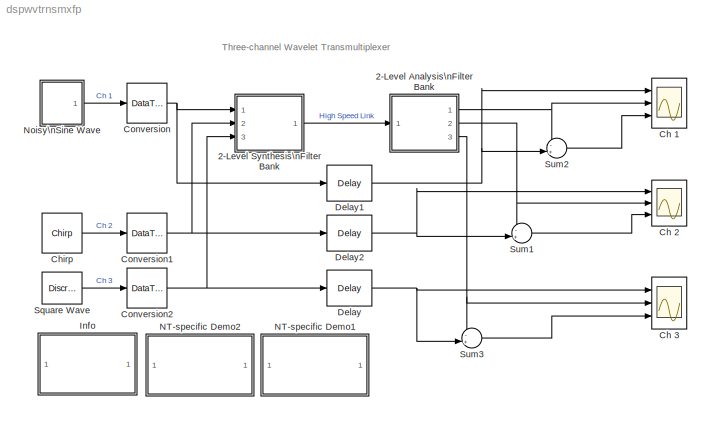
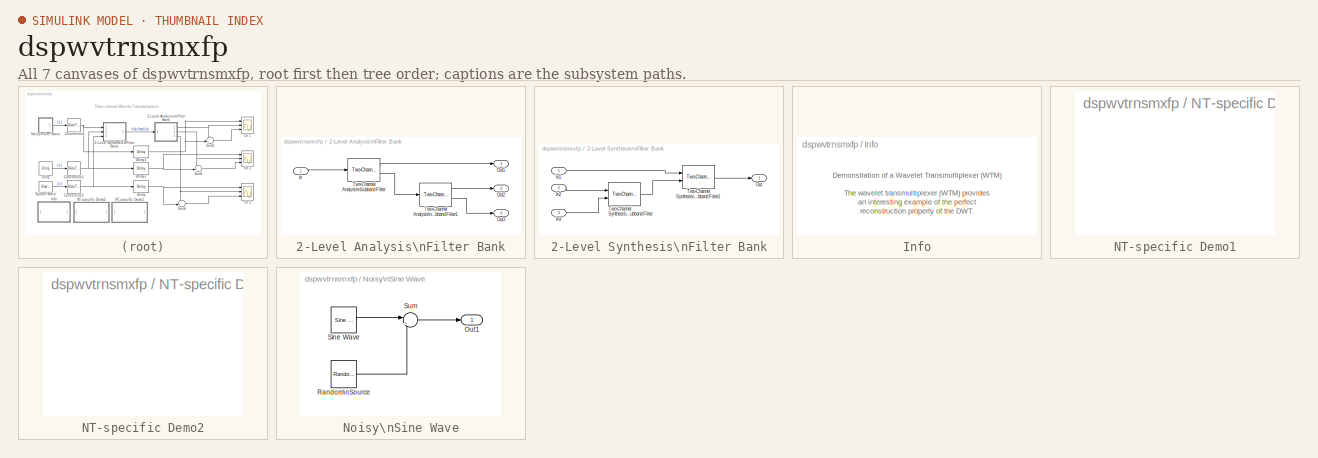
[diagram: thumbnail index - all 7 canvases of the model, root first then tree order]
MODEL dspwvtrnsmxfp
KIND model
CONFIG PreLoadFcn = load dspwlets;
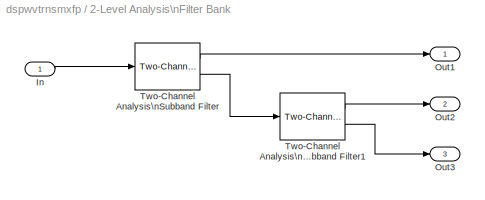
BLOCK [SubSystem] 2-Level Analysis\nFilter Bank
  MaskCallbackString = |
  MaskEnableString = on,on
  MaskIconFrame = on
  MaskIconOpaque = on
  MaskIconRotate = none
  MaskIconUnits = autoscale
  MaskPromptString = Lowpass FIR filter coefficients:|Highpass FIR filter coefficients:
  MaskStyleString = edit,edit
  MaskTabNameString = ,
  MaskToolTipString = on,on
  MaskTunableValueString = off,off
  MaskValueString = lod|hid
  MaskVarAliasString = ,
  MaskVariables = low=@1;high=@2;
  MaskVisibilityString = on,on
  Ports = [1, 3]
  TreatAsAtomicUnit = off
BLOCK [Inport] 2-Level Analysis\nFilter Bank/In
  IconDisplay = Port number
BLOCK [Outport] 2-Level Analysis\nFilter Bank/Out1
  BusOutputAsStruct = off
  IconDisplay = Port number
BLOCK [Outport] 2-Level Analysis\nFilter Bank/Out2
  BusOutputAsStruct = off
  IconDisplay = Port number
  Port = 2
BLOCK [Outport] 2-Level Analysis\nFilter Bank/Out3
  BusOutputAsStruct = off
  IconDisplay = Port number
  Port = 3
BLOCK [Reference] 2-Level Analysis\nFilter Bank/Two-Channel Analysis\nSubband Filter  REF=dspmlti4/Two-Channel Analysis\nSubband Filter
  DialogController = dspDDGCreate
  DialogControllerArgs = DataTag0
  Ports = [1, 2]
  ShowPortLabels = on
  SourceBlock = dspmlti4/Two-Channel Analysis\nSubband Filter
  SourceType = Two-Channel Analysis Subband Filter
  accumFracLength = 28
  accumMode = Binary point scaling
  accumWordLength = 32
  additionalParams = off
  allowOverrides = off
  firstCoeffFracLength = 15
  firstCoeffMode = Same word length as input
  firstCoeffWordLength = 16
  framing = Maintain input frame size
  hpf = high
  lpf = low
  outputFracLength = 14
  outputMode = Same as input
  outputWordLength = 16
  overflowMode = on
  prodOutputFracLength = 28
  prodOutputMode = Inherit via internal rule
  prodOutputWordLength = 32
  roundingMode = Nearest
BLOCK [Reference] 2-Level Analysis\nFilter Bank/Two-Channel Analysis\nSubband Filter1  REF=dspmlti4/Two-Channel Analysis\nSubband Filter
  DialogController = dspDDGCreate
  DialogControllerArgs = DataTag1
  Ports = [1, 2]
  ShowPortLabels = on
  SourceBlock = dspmlti4/Two-Channel Analysis\nSubband Filter
  SourceType = Two-Channel Analysis Subband Filter
  accumFracLength = 28
  accumMode = Binary point scaling
  accumWordLength = 32
  additionalParams = off
  allowOverrides = off
  firstCoeffFracLength = 15
  firstCoeffMode = Same word length as input
  firstCoeffWordLength = 16
  framing = Maintain input frame size
  hpf = high
  lpf = low
  outputFracLength = 14
  outputMode = Same as input
  outputWordLength = 16
  overflowMode = on
  prodOutputFracLength = 28
  prodOutputMode = Inherit via internal rule
  prodOutputWordLength = 32
  roundingMode = Nearest
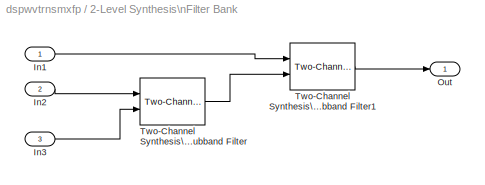
BLOCK [SubSystem] 2-Level Synthesis\nFilter Bank
  MaskCallbackString = |
  MaskEnableString = on,on
  MaskIconFrame = on
  MaskIconOpaque = on
  MaskIconRotate = none
  MaskIconUnits = autoscale
  MaskPromptString = Lowpass FIR filter coefficients:|Highpass FIR filter coefficients:
  MaskStyleString = edit,edit
  MaskTabNameString = ,
  MaskToolTipString = on,on
  MaskTunableValueString = off,off
  MaskValueString = [0 lor]|[0 hir]
  MaskVarAliasString = ,
  MaskVariables = low=@1;high=@2;
  MaskVisibilityString = on,on
  Ports = [3, 1]
  TreatAsAtomicUnit = off
BLOCK [Inport] 2-Level Synthesis\nFilter Bank/In1
  IconDisplay = Port number
BLOCK [Inport] 2-Level Synthesis\nFilter Bank/In2
  IconDisplay = Port number
  Port = 2
BLOCK [Inport] 2-Level Synthesis\nFilter Bank/In3
  IconDisplay = Port number
  Port = 3
BLOCK [Outport] 2-Level Synthesis\nFilter Bank/Out
  BusOutputAsStruct = off
  IconDisplay = Port number
BLOCK [Reference] 2-Level Synthesis\nFilter Bank/Two-Channel Synthesis\nSubband Filter  REF=dspmlti4/Two-Channel Synthesis\nSubband Filter
  DialogController = dspDDGCreate
  DialogControllerArgs = DataTag2
  Ports = [2, 1]
  ShowPortLabels = on
  SourceBlock = dspmlti4/Two-Channel Synthesis\nSubband Filter
  SourceType = Two-Channel Synthesis Subband Filter
  accumFracLength = 28
  accumMode = Binary point scaling
  accumWordLength = 32
  additionalParams = off
  allowOverrides = off
  firstCoeffFracLength = 15
  firstCoeffMode = Same word length as input
  firstCoeffWordLength = 16
  framing = Maintain input frame size
  hpf = high
  lpf = low
  outputFracLength = 14
  outputMode = Same as input
  outputWordLength = 16
  overflowMode = on
  prodOutputFracLength = 28
  prodOutputMode = Inherit via internal rule
  prodOutputWordLength = 32
  roundingMode = Nearest
BLOCK [Reference] 2-Level Synthesis\nFilter Bank/Two-Channel Synthesis\nSubband Filter1  REF=dspmlti4/Two-Channel Synthesis\nSubband Filter
  DialogController = dspDDGCreate
  DialogControllerArgs = DataTag3
  Ports = [2, 1]
  ShowPortLabels = on
  SourceBlock = dspmlti4/Two-Channel Synthesis\nSubband Filter
  SourceType = Two-Channel Synthesis Subband Filter
  accumFracLength = 28
  accumMode = Binary point scaling
  accumWordLength = 32
  additionalParams = off
  allowOverrides = off
  firstCoeffFracLength = 15
  firstCoeffMode = Same word length as input
  firstCoeffWordLength = 16
  framing = Maintain input frame size
  hpf = high
  lpf = low
  outputFracLength = 14
  outputMode = Same as input
  outputWordLength = 16
  overflowMode = on
  prodOutputFracLength = 28
  prodOutputMode = Inherit via internal rule
  prodOutputWordLength = 32
  roundingMode = Nearest
BLOCK [Scope] Ch 1
  DataFormat = StructureWithTime
  NumInputPorts = 3
  Ports = [3]
  TimeRange = 1000
  YMax = 2~2~0.0005
  YMin = -2~-2~-0.0005
  ZoomMode = xonly
BLOCK [Scope] Ch 2
  DataFormat = StructureWithTime
  NumInputPorts = 3
  Ports = [3]
  SaveName = ScopeData1
  TimeRange = 1000
  YMax = 1~1~0.001
  YMin = -1~-1~-0.001
BLOCK [Scope] Ch 3
  DataFormat = StructureWithTime
  NumInputPorts = 3
  Ports = [3]
  SaveName = ScopeData2
  TimeRange = 1000
  YMax = 1.2~1.2~0.001
  YMin = 0~0~-0.001
  ZoomMode = xonly
BLOCK [Reference] Chirp  REF=dspsrcs4/Chirp
  Ports = [0, 1]
  SourceBlock = dspsrcs4/Chirp
  SourceType = Chirp
  Ts = ts
  Tsweep = 1000
  datatype = Double
  f0 = 1/5000
  f1 = 1/50
  mode = Bidirectional
  phase = 0
  spf = 1
  sweep = Swept cosine
  t1 = 1000
BLOCK [DataTypeConversion] Conversion
  OutDataTypeMode = Specify via dialog
  OutScaling = 2^-13
  RndMeth = Nearest
BLOCK [DataTypeConversion] Conversion1
  OutDataTypeMode = Specify via dialog
  OutScaling = 2^-13
  RndMeth = Nearest
BLOCK [DataTypeConversion] Conversion2
  OutDataTypeMode = Specify via dialog
  OutScaling = 2^-13
  RndMeth = Nearest
BLOCK [Reference] Delay  REF=dspsigops/Delay
  Ports = [1, 1]
  SourceBlock = dspsigops/Delay
  SourceType = Delay
  delay = 6
  dif_ic_for_ch = off
  dif_ic_for_dly = off
  dly_unit = Samples
  ic = 0
  ic_detail = on
  reset_popup = None
BLOCK [Reference] Delay1  REF=dspsigops/Delay
  Ports = [1, 1]
  SourceBlock = dspsigops/Delay
  SourceType = Delay
  delay = 4
  dif_ic_for_ch = off
  dif_ic_for_dly = off
  dly_unit = Samples
  ic = 0
  ic_detail = on
  reset_popup = None
BLOCK [Reference] Delay2  REF=dspsigops/Delay
  Ports = [1, 1]
  SourceBlock = dspsigops/Delay
  SourceType = Delay
  delay = 6
  dif_ic_for_ch = off
  dif_ic_for_dly = off
  dly_unit = Samples
  ic = 0
  ic_detail = on
  reset_popup = None
BLOCK [SubSystem] Info
  MaskDisplay = disp('Info')
  MaskIconFrame = on
  MaskIconOpaque = on
  MaskIconRotate = none
  MaskIconUnits = autoscale
  MaskType = Frame-Based Simulation Info
  Ports = []
  TreatAsAtomicUnit = off
BLOCK [SubSystem] NT-specific Demo1
  MaskDisplay = disp('Frame-Based\\nDemo')
  MaskIconFrame = on
  MaskIconOpaque = on
  MaskIconRotate = none
  MaskIconUnits = autoscale
  MaskType = Frame-Based Demo
  OpenFcn = dspwvtrnsmxf
  Ports = []
  TreatAsAtomicUnit = off
BLOCK [SubSystem] NT-specific Demo2
  MaskDisplay = disp('Sample-Based\\nDemo')
  MaskIconFrame = on
  MaskIconOpaque = on
  MaskIconRotate = none
  MaskIconUnits = autoscale
  MaskType = Sample-Based Demo
  OpenFcn = dspwvtrnsmx
  Ports = []
  TreatAsAtomicUnit = off
BLOCK [SubSystem] Noisy\nSine Wave
  MaskDisplay = plot(x,y)\n
  MaskIconFrame = on
  MaskIconOpaque = on
  MaskIconRotate = none
  MaskIconUnits = autoscale
  MaskInitialization = dx=pi/5;\nx=(0:dx:2*pi)';\ny=sin(x);\n[x,y]=stairs(x,y);\n\n% Axes:\nx=[x;NaN;0; 0;NaN;0;2*pi];\ny=[y;NaN;1;-1;NaN;0;0];\n
  MaskType = Noisy Sine Wave
  Ports = [0, 1]
  ShowPortLabels = off
  TreatAsAtomicUnit = off
BLOCK [Outport] Noisy\nSine Wave/Out1
  BusOutputAsStruct = off
  IconDisplay = Port number
BLOCK [Reference] Noisy\nSine Wave/Random\nSource  REF=dspsrcs4/Random\nSource
  CltLength = 12
  DataType = Double
  Diagnostics = AllowInheritedTsInSrc
  Inherit = off
  Max = 1
  Mean = 0
  Min = 0
  NormMethod = Ziggurat
  OutComplex = Real
  Ports = [0, 1]
  RepMode = Specify seed
  SampFrame = 1
  SampMode = Discrete
  SampTime = ts/2
  Seed = 1
  SourceBlock = dspsrcs4/Random\nSource
  SourceType = Random Source
  SrcType = Gaussian
  Var = 0.2
BLOCK [Reference] Noisy\nSine Wave/Sine Wave  REF=dspsrcs4/Sine Wave
  Amplitude = 1
  CompMethod = Trigonometric fcn
  Frequency = 1/68
  OutComplex = Real
  Phase = 0
  Ports = [0, 1]
  ResetState = Restart at time zero
  SampleMode = Discrete
  SampleTime = ts/2
  SamplesPerFrame = 1
  SourceBlock = dspsrcs4/Sine Wave
  SourceType = Sine Wave
  TableSize = Speed
  additionalParams = off
  allowOverrides = on
  dataType = double
  fracBitsMode = Best precision
  numFracBits = 15
  udDataType = sfix(16)
  wordLen = 16
BLOCK [Sum] Noisy\nSine Wave/Sum
  IconShape = round
  Inputs = |++
  Ports = [2, 1]
BLOCK [DiscretePulseGenerator] Square Wave
  Period = 125
  Ports = [0, 1]
  PulseWidth = 50
  SampleTime = ts
  VectorParams1D = off
BLOCK [Sum] Sum1
  IconShape = round
  Inputs = -+|
  Ports = [2, 1]
BLOCK [Sum] Sum2
  IconShape = round
  Inputs = -+|
  Ports = [2, 1]
BLOCK [Sum] Sum3
  IconShape = round
  Inputs = -+|
  Ports = [2, 1]
ANNOTATION (root): Three-channel Wavelet Transmultiplexer
ANNOTATION Info: Demonstration of a Wavelet Transmultiplexer (WTM)\n\nThe wavelet transmultiplexer (WTM) provides\nan interesting example of the perfect\nreconstruction property of the DWT.\n\nThis WTM combines three source signals for transmission\nover a single link, then separates the three signals at the\nreceiving end of the channel. The waveforms plotted in\neach of the scope windows demonstrate the ability ...<+2795ch>
LINE 2-Level Analysis\nFilter Bank/In:1 -> 2-Level Analysis\nFilter Bank/Two-Channel Analysis\nSubband Filter:1
LINE 2-Level Analysis\nFilter Bank/Two-Channel Analysis\nSubband Filter1:1 -> 2-Level Analysis\nFilter Bank/Out2:1
LINE 2-Level Analysis\nFilter Bank/Two-Channel Analysis\nSubband Filter1:2 -> 2-Level Analysis\nFilter Bank/Out3:1
LINE 2-Level Analysis\nFilter Bank/Two-Channel Analysis\nSubband Filter:1 -> 2-Level Analysis\nFilter Bank/Out1:1
LINE 2-Level Analysis\nFilter Bank/Two-Channel Analysis\nSubband Filter:2 -> 2-Level Analysis\nFilter Bank/Two-Channel Analysis\nSubband Filter1:1
NET 2-Level Analysis\nFilter Bank:1 -> Ch 1:2, Sum2:1
NET 2-Level Analysis\nFilter Bank:2 -> Ch 2:2, Sum1:1
NET 2-Level Analysis\nFilter Bank:3 -> Ch 3:2, Sum3:1
LINE 2-Level Synthesis\nFilter Bank/In1:1 -> 2-Level Synthesis\nFilter Bank/Two-Channel Synthesis\nSubband Filter1:1
LINE 2-Level Synthesis\nFilter Bank/In2:1 -> 2-Level Synthesis\nFilter Bank/Two-Channel Synthesis\nSubband Filter:1
LINE 2-Level Synthesis\nFilter Bank/In3:1 -> 2-Level Synthesis\nFilter Bank/Two-Channel Synthesis\nSubband Filter:2
LINE 2-Level Synthesis\nFilter Bank/Two-Channel Synthesis\nSubband Filter1:1 -> 2-Level Synthesis\nFilter Bank/Out:1
LINE 2-Level Synthesis\nFilter Bank/Two-Channel Synthesis\nSubband Filter:1 -> 2-Level Synthesis\nFilter Bank/Two-Channel Synthesis\nSubband Filter1:2
LINE 2-Level Synthesis\nFilter Bank:1 -> 2-Level Analysis\nFilter Bank:1
LINE Chirp:1 -> Conversion1:1
NET Conversion1:1 -> 2-Level Synthesis\nFilter Bank:2, Delay2:1
NET Conversion2:1 -> 2-Level Synthesis\nFilter Bank:3, Delay:1
NET Conversion:1 -> 2-Level Synthesis\nFilter Bank:1, Delay1:1
NET Delay1:1 -> Ch 1:1, Sum2:2
NET Delay2:1 -> Ch 2:1, Sum1:2
NET Delay:1 -> Ch 3:1, Sum3:2
LINE Noisy\nSine Wave/Random\nSource:1 -> Noisy\nSine Wave/Sum:2
LINE Noisy\nSine Wave/Sine Wave:1 -> Noisy\nSine Wave/Sum:1
LINE Noisy\nSine Wave/Sum:1 -> Noisy\nSine Wave/Out1:1
LINE Noisy\nSine Wave:1 -> Conversion:1
LINE Square Wave:1 -> Conversion2:1
LINE Sum1:1 -> Ch 2:3
LINE Sum2:1 -> Ch 1:3
LINE Sum3:1 -> Ch 3:3
note: NET lines group one-source signal fan-out (src -> all destinations, sorted); 1:1 wires keep LINE
